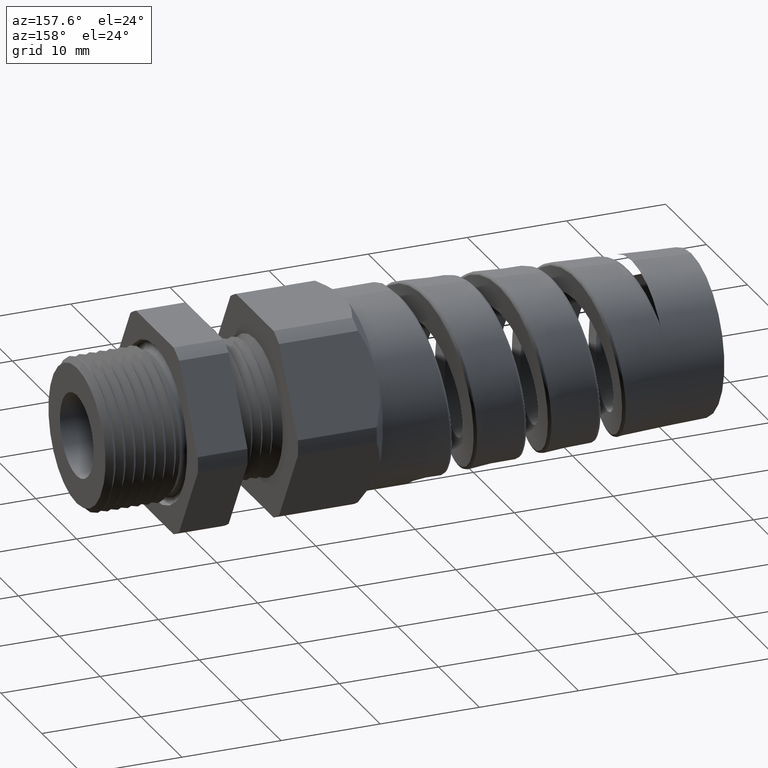
[diagram: clean part render]
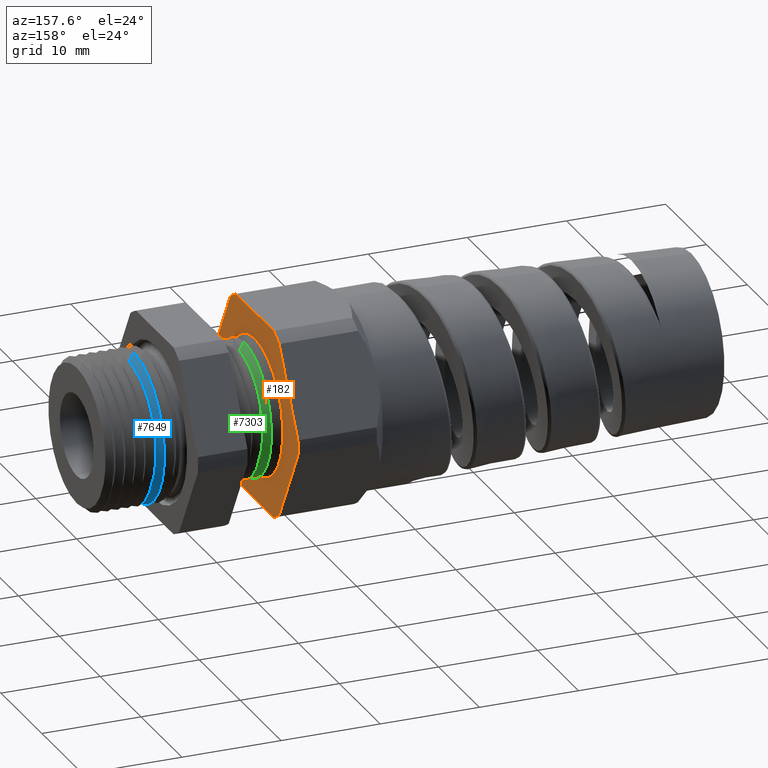
[diagram: same view with three faces highlighted in distinct colors, each labeled with its STEP entity id]
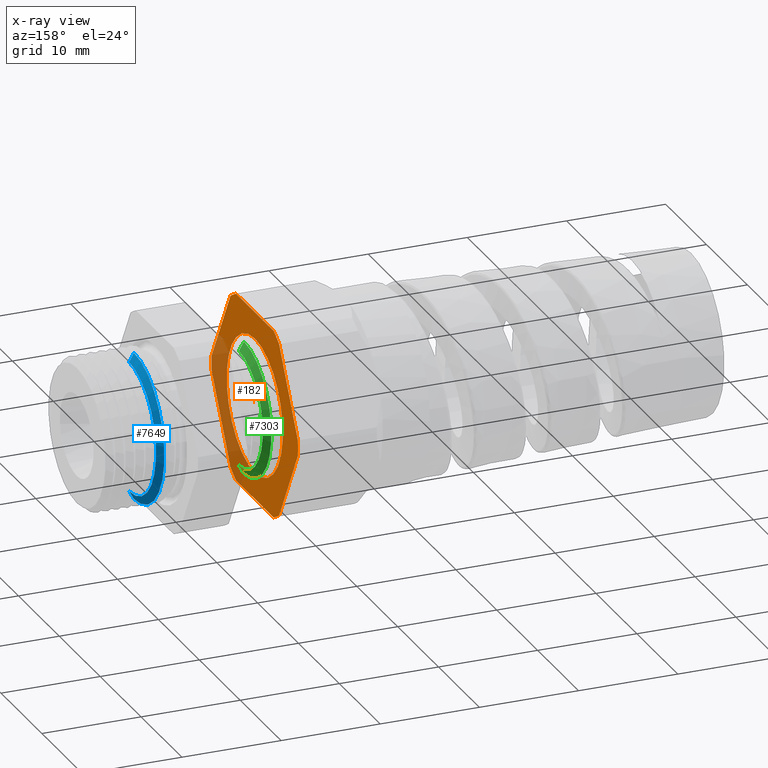
[diagram: x-ray of the same camera — body ghosted, the three highlighted faces saturated]
A machine part, auxiliary view with three faces highlighted in distinct colors.
The next image is the same camera in x-ray (body ghosted, the three faces saturated) — at least one of them is partly hidden behind the body in this view.
Their STEP definitions:

[orange] entity #182 — the highlighted planar face has unit normal (1, 0, 0).
#99 = EDGE_LOOP ( 'NONE', ( #162, #163, #164, #165, #166, #167, #168, #169, #170, #149, #150, #151 ) ) ;
#149 = ORIENTED_EDGE ( 'NONE', *, *, #344, .T. ) ;
#150 = ORIENTED_EDGE ( 'NONE', *, *, #3042, .T. ) ;
#151 = ORIENTED_EDGE ( 'NONE', *, *, #3118, .T. ) ;
#161 = ORIENTED_EDGE ( 'NONE', *, *, #7606, .F. ) ;
#162 = ORIENTED_EDGE ( 'NONE', *, *, #3100, .T. ) ;
#163 = ORIENTED_EDGE ( 'NONE', *, *, #412, .T. ) ;
#164 = ORIENTED_EDGE ( 'NONE', *, *, #349, .T. ) ;
#165 = ORIENTED_EDGE ( 'NONE', *, *, #418, .T. ) ;
#166 = ORIENTED_EDGE ( 'NONE', *, *, #353, .T. ) ;
#167 = ORIENTED_EDGE ( 'NONE', *, *, #320, .T. ) ;
#168 = ORIENTED_EDGE ( 'NONE', *, *, #310, .T. ) ;
#169 = ORIENTED_EDGE ( 'NONE', *, *, #378, .T. ) ;
#170 = ORIENTED_EDGE ( 'NONE', *, *, #371, .T. ) ;
#182 = ADVANCED_FACE ( 'NONE', ( #763, #762 ), #761, .T. ) ;
#183 = EDGE_LOOP ( 'NONE', ( #184, #161 ) ) ;
#184 = ORIENTED_EDGE ( 'NONE', *, *, #185, .F. ) ;
#185 = EDGE_CURVE ( 'NONE', #7605, #7613, #820, .T. ) ;
#310 = EDGE_CURVE ( 'NONE', #382, #376, #958, .T. ) ;
#314 = VERTEX_POINT ( 'NONE', #999 ) ;
#320 = EDGE_CURVE ( 'NONE', #314, #382, #992, .T. ) ;
#325 = VERTEX_POINT ( 'NONE', #1035 ) ;
#342 = VERTEX_POINT ( 'NONE', #1087 ) ;
#344 = EDGE_CURVE ( 'NONE', #2999, #3105, #1085, .T. ) ;
#349 = EDGE_CURVE ( 'NONE', #423, #358, #1143, .T. ) ;
#353 = EDGE_CURVE ( 'NONE', #325, #314, #1139, .T. ) ;
#358 = VERTEX_POINT ( 'NONE', #1124 ) ;
#371 = EDGE_CURVE ( 'NONE', #342, #2999, #1166, .T. ) ;
#376 = VERTEX_POINT ( 'NONE', #1146 ) ;
#378 = EDGE_CURVE ( 'NONE', #376, #342, #1208, .T. ) ;
#382 = VERTEX_POINT ( 'NONE', #1191 ) ;
#412 = EDGE_CURVE ( 'NONE', #3003, #423, #1267, .T. ) ;
#418 = EDGE_CURVE ( 'NONE', #358, #325, #1255, .T. ) ;
#423 = VERTEX_POINT ( 'NONE', #1300 ) ;
#757 = DIRECTION ( 'NONE',  ( 0.0000000000000000000, 0.0000000000000000000, -1.000000000000000000 ) ) ;
#758 = DIRECTION ( 'NONE',  ( 1.000000000000000000, 0.0000000000000000000, 0.0000000000000000000 ) ) ;
#759 = CARTESIAN_POINT ( 'NONE',  ( -0.7069291338582676100, 0.2699999999999999600, 0.0000000000000000000 ) ) ;
#760 = AXIS2_PLACEMENT_3D ( 'NONE', #759, #758, #757 ) ;
#761 = PLANE ( 'NONE',  #760 ) ;
#762 = FACE_OUTER_BOUND ( 'NONE', #99, .T. ) ;
#763 = FACE_BOUND ( 'NONE', #183, .T. ) ;
#816 = DIRECTION ( 'NONE',  ( 0.0000000000000000000, 0.0000000000000000000, -1.000000000000000000 ) ) ;
#817 = DIRECTION ( 'NONE',  ( 1.000000000000000000, 0.0000000000000000000, 0.0000000000000000000 ) ) ;
#818 = CARTESIAN_POINT ( 'NONE',  ( -0.7069291338582672800, 0.0000000000000000000, 0.0000000000000000000 ) ) ;
#819 = AXIS2_PLACEMENT_3D ( 'NONE', #818, #817, #816 ) ;
#820 = CIRCLE ( 'NONE', #819, 0.2699999999999999600 ) ;
#957 = CARTESIAN_POINT ( 'NONE',  ( -0.7069291338582676100, -0.2572595264191647700, 0.3044134295108990000 ) ) ;
#958 = LINE ( 'NONE', #957, #1011 ) ;
#988 = DIRECTION ( 'NONE',  ( 0.0000000000000000000, 0.0000000000000000000, -1.000000000000000000 ) ) ;
#989 = DIRECTION ( 'NONE',  ( 1.000000000000000000, 0.0000000000000000000, 0.0000000000000000000 ) ) ;
#990 = CARTESIAN_POINT ( 'NONE',  ( -0.7069291338582676100, 0.0000000000000000000, 0.0000000000000000000 ) ) ;
#991 = AXIS2_PLACEMENT_3D ( 'NONE', #990, #989, #988 ) ;
#992 = CIRCLE ( 'NONE', #991, 0.4162500000000001200 ) ;
#999 = CARTESIAN_POINT ( 'NONE',  ( -0.7069291338582672800, -0.1806628420566887000, 0.3750000000000000600 ) ) ;
#1010 = DIRECTION ( 'NONE',  ( 0.0000000000000000000, -0.4999999999999995600, -0.8660254037844389300 ) ) ;
#1011 = VECTOR ( 'NONE', #1010, 39.37007874015748100 ) ;
#1035 = CARTESIAN_POINT ( 'NONE',  ( -0.7069291338582672800, 0.1806628420566886700, 0.3749999999999999400 ) ) ;
#1081 = DIRECTION ( 'NONE',  ( 0.0000000000000000000, 0.0000000000000000000, -1.000000000000000000 ) ) ;
#1082 = DIRECTION ( 'NONE',  ( 1.000000000000000000, 0.0000000000000000000, 0.0000000000000000000 ) ) ;
#1083 = CARTESIAN_POINT ( 'NONE',  ( -0.7069291338582676100, 0.0000000000000000000, 0.0000000000000000000 ) ) ;
#1084 = AXIS2_PLACEMENT_3D ( 'NONE', #1083, #1082, #1081 ) ;
#1085 = CIRCLE ( 'NONE', #1084, 0.4162500000000001200 ) ;
#1087 = CARTESIAN_POINT ( 'NONE',  ( -0.7069291338582672800, -0.4150909474475088000, -0.03104138925901224500 ) ) ;
#1124 = CARTESIAN_POINT ( 'NONE',  ( -0.7069291338582672800, 0.2344281053908206000, 0.3439586107409877100 ) ) ;
#1136 = DIRECTION ( 'NONE',  ( 0.0000000000000000000, -1.000000000000000000, 0.0000000000000000000 ) ) ;
#1137 = VECTOR ( 'NONE', #1136, 39.37007874015748100 ) ;
#1138 = CARTESIAN_POINT ( 'NONE',  ( -0.7069291338582676100, 0.2699999999999999600, 0.3749999999999999400 ) ) ;
#1139 = LINE ( 'NONE', #1138, #1137 ) ;
#1140 = DIRECTION ( 'NONE',  ( 0.0000000000000000000, -0.5000000000000001100, 0.8660254037844384900 ) ) ;
#1141 = VECTOR ( 'NONE', #1140, 39.37007874015748900 ) ;
#1142 = CARTESIAN_POINT ( 'NONE',  ( -0.7069291338582676100, 0.3922595264191647300, 0.07058657048910094200 ) ) ;
#1143 = LINE ( 'NONE', #1142, #1141 ) ;
#1146 = CARTESIAN_POINT ( 'NONE',  ( -0.7069291338582672800, -0.4150909474475088000, 0.03104138925901167900 ) ) ;
#1157 = DIRECTION ( 'NONE',  ( 0.0000000000000000000, 0.5000000000000001100, -0.8660254037844384900 ) ) ;
#1158 = VECTOR ( 'NONE', #1157, 39.37007874015748900 ) ;
#1159 = CARTESIAN_POINT ( 'NONE',  ( -0.7069291338582676100, -0.2572595264191645500, -0.3044134295108993900 ) ) ;
#1166 = LINE ( 'NONE', #1159, #1158 ) ;
#1191 = CARTESIAN_POINT ( 'NONE',  ( -0.7069291338582672800, -0.2344281053908203500, 0.3439586107409879900 ) ) ;
#1204 = DIRECTION ( 'NONE',  ( 0.0000000000000000000, 0.0000000000000000000, -1.000000000000000000 ) ) ;
#1205 = DIRECTION ( 'NONE',  ( 1.000000000000000000, 0.0000000000000000000, 0.0000000000000000000 ) ) ;
#1206 = CARTESIAN_POINT ( 'NONE',  ( -0.7069291338582676100, 0.0000000000000000000, 0.0000000000000000000 ) ) ;
#1207 = AXIS2_PLACEMENT_3D ( 'NONE', #1206, #1205, #1204 ) ;
#1208 = CIRCLE ( 'NONE', #1207, 0.4162499999999999500 ) ;
#1251 = DIRECTION ( 'NONE',  ( 0.0000000000000000000, 0.0000000000000000000, -1.000000000000000000 ) ) ;
#1252 = DIRECTION ( 'NONE',  ( 1.000000000000000000, 0.0000000000000000000, 0.0000000000000000000 ) ) ;
#1253 = CARTESIAN_POINT ( 'NONE',  ( -0.7069291338582676100, 0.0000000000000000000, 0.0000000000000000000 ) ) ;
#1254 = AXIS2_PLACEMENT_3D ( 'NONE', #1253, #1252, #1251 ) ;
#1255 = CIRCLE ( 'NONE', #1254, 0.4162499999999999500 ) ;
#1263 = DIRECTION ( 'NONE',  ( 0.0000000000000000000, 0.0000000000000000000, -1.000000000000000000 ) ) ;
#1264 = DIRECTION ( 'NONE',  ( 1.000000000000000000, 0.0000000000000000000, 0.0000000000000000000 ) ) ;
#1265 = CARTESIAN_POINT ( 'NONE',  ( -0.7069291338582676100, 0.0000000000000000000, 0.0000000000000000000 ) ) ;
#1266 = AXIS2_PLACEMENT_3D ( 'NONE', #1265, #1264, #1263 ) ;
#1267 = CIRCLE ( 'NONE', #1266, 0.4162500000000000100 ) ;
#1300 = CARTESIAN_POINT ( 'NONE',  ( -0.7069291338582672800, 0.4150909474475088000, 0.03104138925901251900 ) ) ;
#1743 = CARTESIAN_POINT ( 'NONE',  ( -0.7069291338582672800, -0.2344281053908202600, -0.3439586107409880500 ) ) ;
#1773 = CARTESIAN_POINT ( 'NONE',  ( -0.7069291338582676100, 0.4150909474475088000, -0.03104138925901243200 ) ) ;
#1811 = CARTESIAN_POINT ( 'NONE',  ( -0.7069291338582672800, 0.1806628420566885100, -0.3750000000000001700 ) ) ;
#1933 = DIRECTION ( 'NONE',  ( 0.0000000000000000000, 1.000000000000000000, 0.0000000000000000000 ) ) ;
#1934 = VECTOR ( 'NONE', #1933, 39.37007874015748100 ) ;
#1935 = CARTESIAN_POINT ( 'NONE',  ( -0.7069291338582676100, 0.2699999999999999600, -0.3750000000000001100 ) ) ;
#1936 = LINE ( 'NONE', #1935, #1934 ) ;
#2020 = CARTESIAN_POINT ( 'NONE',  ( -0.7069291338582676100, 0.0000000000000000000, 0.0000000000000000000 ) ) ;
#2033 = CARTESIAN_POINT ( 'NONE',  ( -0.7069291338582672800, -0.1806628420566884800, -0.3750000000000001100 ) ) ;
#2041 = DIRECTION ( 'NONE',  ( 0.0000000000000000000, 0.4999999999999998300, 0.8660254037844388200 ) ) ;
#2042 = VECTOR ( 'NONE', #2041, 39.37007874015748100 ) ;
#2043 = CARTESIAN_POINT ( 'NONE',  ( -0.7069291338582676100, 0.3922595264191647300, -0.07058657048910085800 ) ) ;
#2044 = LINE ( 'NONE', #2043, #2042 ) ;
#2082 = DIRECTION ( 'NONE',  ( 0.0000000000000000000, 0.0000000000000000000, -1.000000000000000000 ) ) ;
#2083 = DIRECTION ( 'NONE',  ( 1.000000000000000000, 0.0000000000000000000, 0.0000000000000000000 ) ) ;
#2084 = AXIS2_PLACEMENT_3D ( 'NONE', #2020, #2083, #2082 ) ;
#2085 = CIRCLE ( 'NONE', #2084, 0.4162500000000001200 ) ;
#2999 = VERTEX_POINT ( 'NONE', #1743 ) ;
#3003 = VERTEX_POINT ( 'NONE', #1773 ) ;
#3013 = VERTEX_POINT ( 'NONE', #1811 ) ;
#3042 = EDGE_CURVE ( 'NONE', #3105, #3013, #1936, .T. ) ;
#3100 = EDGE_CURVE ( 'NONE', #7512, #3003, #2044, .T. ) ;
#3105 = VERTEX_POINT ( 'NONE', #2033 ) ;
#3118 = EDGE_CURVE ( 'NONE', #3013, #7512, #2085, .T. ) ;
#4028 = CARTESIAN_POINT ( 'NONE',  ( -0.7069291338582672800, 0.2344281053908206800, -0.3439586107409877100 ) ) ;
#4171 = CARTESIAN_POINT ( 'NONE',  ( -0.7069291338582672800, 3.306546357697853700E-017, -0.2699999999999999600 ) ) ;
#4176 = DIRECTION ( 'NONE',  ( 0.0000000000000000000, 0.0000000000000000000, -1.000000000000000000 ) ) ;
#4177 = DIRECTION ( 'NONE',  ( 1.000000000000000000, 0.0000000000000000000, 0.0000000000000000000 ) ) ;
#4178 = CARTESIAN_POINT ( 'NONE',  ( -0.7069291338582672800, 0.0000000000000000000, 0.0000000000000000000 ) ) ;
#4179 = AXIS2_PLACEMENT_3D ( 'NONE', #4178, #4177, #4176 ) ;
#4180 = CIRCLE ( 'NONE', #4179, 0.2699999999999999600 ) ;
#4181 = CARTESIAN_POINT ( 'NONE',  ( -0.7069291338582672800, 0.0000000000000000000, 0.2699999999999999600 ) ) ;
#7512 = VERTEX_POINT ( 'NONE', #4028 ) ;
#7605 = VERTEX_POINT ( 'NONE', #4181 ) ;
#7606 = EDGE_CURVE ( 'NONE', #7613, #7605, #4180, .T. ) ;
#7613 = VERTEX_POINT ( 'NONE', #4171 ) ;

[blue] entity #7649 — the highlighted conical surface has half-angle 61.5 deg.
#1100 = VERTEX_POINT ( 'NONE', #1396 ) ;
#1396 = CARTESIAN_POINT ( 'NONE',  ( -0.2079609809054341600, 0.0000000000000000000, 0.2594091762748933500 ) ) ;
#1479 = DIRECTION ( 'NONE',  ( 0.0000000000000000000, 0.0000000000000000000, -1.000000000000000000 ) ) ;
#1480 = DIRECTION ( 'NONE',  ( 1.000000000000000000, 0.0000000000000000000, 0.0000000000000000000 ) ) ;
#1481 = CARTESIAN_POINT ( 'NONE',  ( -0.2079609809054341600, 0.0000000000000000000, 0.0000000000000000000 ) ) ;
#1482 = AXIS2_PLACEMENT_3D ( 'NONE', #1481, #1480, #1479 ) ;
#1483 = CIRCLE ( 'NONE', #1482, 0.2594091762748933500 ) ;
#1491 = CARTESIAN_POINT ( 'NONE',  ( -0.2079609809054341600, 3.388767424156001800E-017, -0.2594091762748933500 ) ) ;
#1911 = VERTEX_POINT ( 'NONE', #1491 ) ;
#2772 = EDGE_CURVE ( 'NONE', #1911, #1100, #1483, .T. ) ;
#4193 = CARTESIAN_POINT ( 'NONE',  ( -0.2267523337684278200, 0.0000000000000000000, -0.2940185428871365800 ) ) ;
#4217 = DIRECTION ( 'NONE',  ( 0.0000000000000000000, 0.0000000000000000000, 1.000000000000000000 ) ) ;
#4218 = DIRECTION ( 'NONE',  ( -1.000000000000000000, 0.0000000000000000000, 0.0000000000000000000 ) ) ;
#4219 = CARTESIAN_POINT ( 'NONE',  ( -0.2299999999999998400, 0.0000000000000000000, 0.0000000000000000000 ) ) ;
#4220 = AXIS2_PLACEMENT_3D ( 'NONE', #4219, #4218, #4217 ) ;
#4222 = CONICAL_SURFACE ( 'NONE', #4220, 0.2999999999999999900, 1.073377489976514300 ) ;
#4223 = FACE_OUTER_BOUND ( 'NONE', #7643, .T. ) ;
#4234 = DIRECTION ( 'NONE',  ( -0.4771587602596069600, 1.076240564057395700E-016, -0.8788171126619660500 ) ) ;
#4235 = VECTOR ( 'NONE', #4234, 39.37007874015748900 ) ;
#4236 = CARTESIAN_POINT ( 'NONE',  ( -0.2299999999999998400, 3.673940397442058900E-017, -0.2999999999999999900 ) ) ;
#4237 = LINE ( 'NONE', #4236, #4235 ) ;
#4256 = CARTESIAN_POINT ( 'NONE',  ( -0.2267523337684278200, 3.600688674367005900E-017, 0.2940185428871365800 ) ) ;
#4257 = DIRECTION ( 'NONE',  ( 0.0000000000000000000, 0.0000000000000000000, 1.000000000000000000 ) ) ;
#4258 = DIRECTION ( 'NONE',  ( -1.000000000000000000, 0.0000000000000000000, 0.0000000000000000000 ) ) ;
#4259 = AXIS2_PLACEMENT_3D ( 'NONE', #4266, #4258, #4257 ) ;
#4260 = CIRCLE ( 'NONE', #4259, 0.2940185428871365800 ) ;
#4266 = CARTESIAN_POINT ( 'NONE',  ( -0.2267523337684278200, 0.0000000000000000000, 0.0000000000000000000 ) ) ;
#4268 = DIRECTION ( 'NONE',  ( -0.4771587602596069600, 0.0000000000000000000, 0.8788171126619660500 ) ) ;
#4269 = VECTOR ( 'NONE', #4268, 39.37007874015748900 ) ;
#4270 = CARTESIAN_POINT ( 'NONE',  ( -0.2299999999999998400, 0.0000000000000000000, 0.2999999999999999900 ) ) ;
#4276 = LINE ( 'NONE', #4270, #4269 ) ;
#7631 = VERTEX_POINT ( 'NONE', #4193 ) ;
#7640 = EDGE_CURVE ( 'NONE', #1911, #7631, #4237, .T. ) ;
#7643 = EDGE_LOOP ( 'NONE', ( #7646, #7644, #7656, #7653 ) ) ;
#7644 = ORIENTED_EDGE ( 'NONE', *, *, #7640, .T. ) ;
#7646 = ORIENTED_EDGE ( 'NONE', *, *, #2772, .F. ) ;
#7649 = ADVANCED_FACE ( 'NONE', ( #4223 ), #4222, .T. ) ;
#7653 = ORIENTED_EDGE ( 'NONE', *, *, #7654, .F. ) ;
#7654 = EDGE_CURVE ( 'NONE', #1100, #7661, #4276, .T. ) ;
#7656 = ORIENTED_EDGE ( 'NONE', *, *, #7660, .F. ) ;
#7660 = EDGE_CURVE ( 'NONE', #7661, #7631, #4260, .T. ) ;
#7661 = VERTEX_POINT ( 'NONE', #4256 ) ;

[green] entity #7303 — the highlighted conical surface has half-angle 60 deg.
#2696 = DIRECTION ( 'NONE',  ( 0.0000000000000000000, 0.0000000000000000000, -1.000000000000000000 ) ) ;
#2697 = DIRECTION ( 'NONE',  ( 1.000000000000000000, 0.0000000000000000000, 0.0000000000000000000 ) ) ;
#2698 = CARTESIAN_POINT ( 'NONE',  ( -0.6438351230906828000, 0.0000000000000000000, 0.0000000000000000000 ) ) ;
#2699 = AXIS2_PLACEMENT_3D ( 'NONE', #2698, #2697, #2696 ) ;
#2700 = CIRCLE ( 'NONE', #2699, 0.2300000000000000100 ) ;
#2701 = CARTESIAN_POINT ( 'NONE',  ( -0.6438351230906828000, 3.028802685783895300E-017, -0.2300000000000000100 ) ) ;
#2702 = CARTESIAN_POINT ( 'NONE',  ( -0.6438351230906828000, 0.0000000000000000000, 0.2300000000000000100 ) ) ;
#2704 = CARTESIAN_POINT ( 'NONE',  ( -0.6638351230906824900, 0.0000000000000000000, -0.2646410161513776900 ) ) ;
#2705 = FACE_OUTER_BOUND ( 'NONE', #7299, .T. ) ;
#2708 = DIRECTION ( 'NONE',  ( -0.4999999999999913400, 1.060575238724912700E-016, -0.8660254037844434800 ) ) ;
#2709 = VECTOR ( 'NONE', #2708, 39.37007874015748900 ) ;
#2710 = CARTESIAN_POINT ( 'NONE',  ( -0.6669291338582673500, 3.306546357697853700E-017, -0.2699999999999999600 ) ) ;
#2730 = LINE ( 'NONE', #2710, #2709 ) ;
#2745 = DIRECTION ( 'NONE',  ( 0.0000000000000000000, 0.0000000000000000000, 1.000000000000000000 ) ) ;
#2746 = DIRECTION ( 'NONE',  ( -1.000000000000000000, 0.0000000000000000000, 0.0000000000000000000 ) ) ;
#2747 = CARTESIAN_POINT ( 'NONE',  ( -0.6638351230906824900, 0.0000000000000000000, 0.0000000000000000000 ) ) ;
#2748 = AXIS2_PLACEMENT_3D ( 'NONE', #2747, #2746, #2745 ) ;
#2749 = CIRCLE ( 'NONE', #2748, 0.2646410161513777500 ) ;
#2750 = CARTESIAN_POINT ( 'NONE',  ( -0.6638351230906824900, 3.240917733528877000E-017, 0.2646410161513776900 ) ) ;
#2751 = DIRECTION ( 'NONE',  ( -0.4999999999999913400, 0.0000000000000000000, 0.8660254037844434800 ) ) ;
#2752 = VECTOR ( 'NONE', #2751, 39.37007874015748900 ) ;
#2753 = CARTESIAN_POINT ( 'NONE',  ( -0.6669291338582673500, 0.0000000000000000000, 0.2699999999999999600 ) ) ;
#2754 = LINE ( 'NONE', #2753, #2752 ) ;
#2764 = DIRECTION ( 'NONE',  ( 0.0000000000000000000, 0.0000000000000000000, 1.000000000000000000 ) ) ;
#2765 = DIRECTION ( 'NONE',  ( -1.000000000000000000, 0.0000000000000000000, 0.0000000000000000000 ) ) ;
#2766 = AXIS2_PLACEMENT_3D ( 'NONE', #2769, #2765, #2764 ) ;
#2767 = CONICAL_SURFACE ( 'NONE', #2766, 0.2699999999999999600, 1.047197551196607600 ) ;
#2769 = CARTESIAN_POINT ( 'NONE',  ( -0.6669291338582673500, 0.0000000000000000000, 0.0000000000000000000 ) ) ;
#7271 = VERTEX_POINT ( 'NONE', #2702 ) ;
#7273 = VERTEX_POINT ( 'NONE', #2701 ) ;
#7275 = EDGE_CURVE ( 'NONE', #7273, #7271, #2700, .T. ) ;
#7295 = EDGE_CURVE ( 'NONE', #7273, #7296, #2730, .T. ) ;
#7296 = VERTEX_POINT ( 'NONE', #2704 ) ;
#7297 = ORIENTED_EDGE ( 'NONE', *, *, #7295, .T. ) ;
#7298 = ORIENTED_EDGE ( 'NONE', *, *, #7275, .F. ) ;
#7299 = EDGE_LOOP ( 'NONE', ( #7298, #7297, #7314, #7307 ) ) ;
#7303 = ADVANCED_FACE ( 'NONE', ( #2705 ), #2767, .T. ) ;
#7307 = ORIENTED_EDGE ( 'NONE', *, *, #7309, .F. ) ;
#7309 = EDGE_CURVE ( 'NONE', #7271, #7310, #2754, .T. ) ;
#7310 = VERTEX_POINT ( 'NONE', #2750 ) ;
#7311 = EDGE_CURVE ( 'NONE', #7310, #7296, #2749, .T. ) ;
#7314 = ORIENTED_EDGE ( 'NONE', *, *, #7311, .F. ) ;